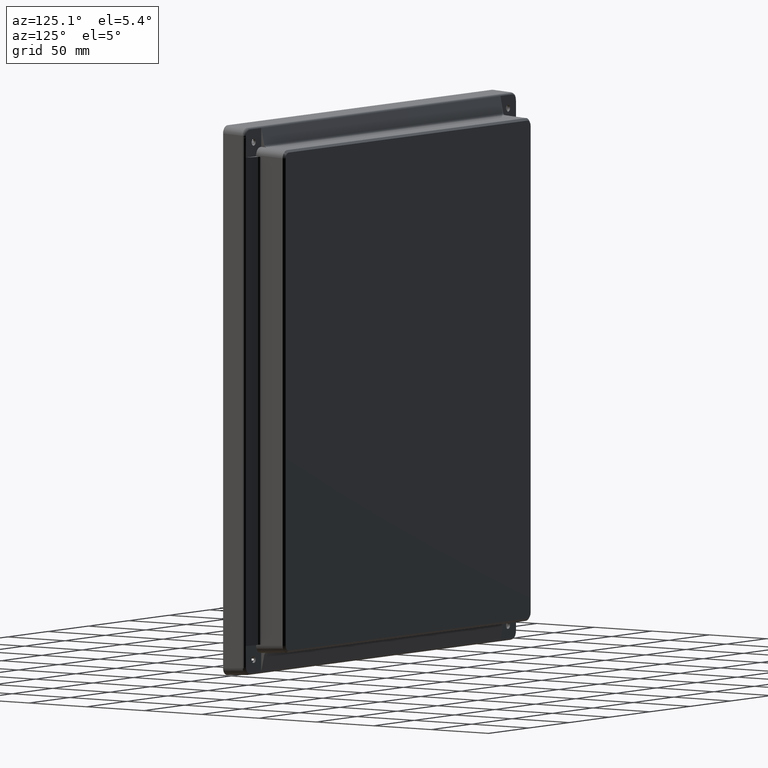
[diagram: clean part render]
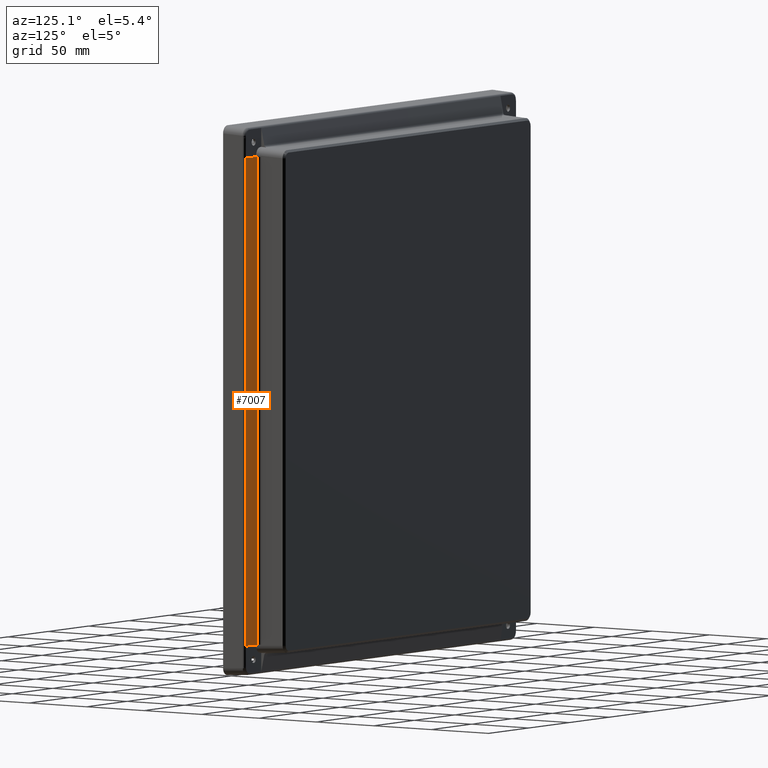
[diagram: same view with one face highlighted and labeled with its STEP entity id]
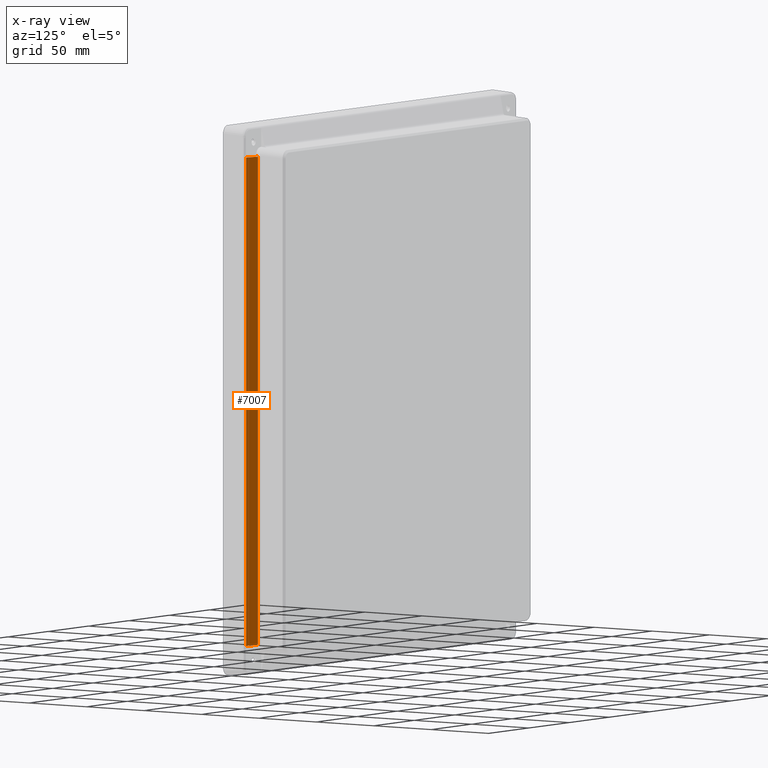
[diagram: x-ray of the same camera — body ghosted, the highlighted face saturated]
A machine part, auxiliary view. The second image highlights one B-rep face of the part: STEP entity #7007.
The next image is the same camera in x-ray: the body ghosted, the highlighted face saturated — about 0% of this face is hidden behind the body in this view.
In plain terms, the highlighted planar face has unit normal (0.2079, 0.9781, 0).
Its self-contained STEP definition (entity closure, byte-faithful):
#7007 = ADVANCED_FACE ( 'NONE', ( #9925 ), #9924, .T. ) ;
#7008 = EDGE_LOOP ( 'NONE', ( #7009, #7013, #7016, #7074 ) ) ;
#7009 = ORIENTED_EDGE ( 'NONE', *, *, #7010, .T. ) ;
#7010 = EDGE_CURVE ( 'NONE', #7011, #7012, #9922, .T. ) ;
#7011 = VERTEX_POINT ( 'NONE', #9915 ) ;
#7012 = VERTEX_POINT ( 'NONE', #9914 ) ;
#7013 = ORIENTED_EDGE ( 'NONE', *, *, #7014, .T. ) ;
#7014 = EDGE_CURVE ( 'NONE', #7012, #7015, #9913, .T. ) ;
#7015 = VERTEX_POINT ( 'NONE', #9973 ) ;
#7016 = ORIENTED_EDGE ( 'NONE', *, *, #7017, .T. ) ;
#7017 = EDGE_CURVE ( 'NONE', #7015, #7018, #9972, .T. ) ;
#7018 = VERTEX_POINT ( 'NONE', #9968 ) ;
#7074 = ORIENTED_EDGE ( 'NONE', *, *, #7075, .T. ) ;
#7075 = EDGE_CURVE ( 'NONE', #7018, #7011, #10111, .T. ) ;
#9913 = LINE ( 'NONE', #9976, #9975 ) ;
#9914 = CARTESIAN_POINT ( 'NONE',  ( 155.8193288229011600, 12.69024197221564000, -174.5575553951949000 ) ) ;
#9915 = CARTESIAN_POINT ( 'NONE',  ( 166.9748041026298900, 10.31907250296160300, -174.6818231213823100 ) ) ;
#9916 = DIRECTION ( 'NONE',  ( -0.9780895396599574900, 0.2078993495555324100, 0.01089554322459434700 ) ) ;
#9917 = VECTOR ( 'NONE', #9916, 1000.000000000000000 ) ;
#9918 = CARTESIAN_POINT ( 'NONE',  ( 164.5283765008035700, 10.83907674238043700, -174.6545708539765700 ) ) ;
#9919 = DIRECTION ( 'NONE',  ( -0.9781476007338061300, 0.2079116908177565700, 0.0000000000000000000 ) ) ;
#9920 = DIRECTION ( 'NONE',  ( 0.2079116908177565900, 0.9781476007338062400, 5.896723940079224200E-017 ) ) ;
#9921 = AXIS2_PLACEMENT_3D ( 'NONE', #9923, #9920, #9919 ) ;
#9922 = LINE ( 'NONE', #9918, #9917 ) ;
#9923 = CARTESIAN_POINT ( 'NONE',  ( 168.4759222071696200, 9.999999999999998200, 195.7259222071696200 ) ) ;
#9924 = PLANE ( 'NONE',  #9921 ) ;
#9925 = FACE_OUTER_BOUND ( 'NONE', #7008, .T. ) ;
#9968 = CARTESIAN_POINT ( 'NONE',  ( 166.9748041026297800, 10.31907250296160300, 174.6818231213824500 ) ) ;
#9969 = DIRECTION ( 'NONE',  ( 0.9780895396599574900, -0.2078993495555324100, 0.01089554322459431900 ) ) ;
#9970 = VECTOR ( 'NONE', #9969, 1000.000000000000100 ) ;
#9971 = CARTESIAN_POINT ( 'NONE',  ( 168.7000071150184200, 9.952369282465509700, 174.7010412228245900 ) ) ;
#9972 = LINE ( 'NONE', #9971, #9970 ) ;
#9973 = CARTESIAN_POINT ( 'NONE',  ( 155.8193288229012100, 12.69024197221560300, 174.5575553951951000 ) ) ;
#9974 = DIRECTION ( 'NONE',  ( 1.578409515821900400E-016, -9.383473256558876700E-017, 1.000000000000000000 ) ) ;
#9975 = VECTOR ( 'NONE', #9974, 1000.000000000000000 ) ;
#9976 = CARTESIAN_POINT ( 'NONE',  ( 155.8193288229012100, 12.69024197221560600, 174.5408335138846200 ) ) ;
#10108 = DIRECTION ( 'NONE',  ( 2.828508372835667400E-016, 1.628011680734772200E-019, -1.000000000000000000 ) ) ;
#10109 = VECTOR ( 'NONE', #10108, 1000.000000000000000 ) ;
#10110 = CARTESIAN_POINT ( 'NONE',  ( 166.9748041026298900, 10.31907250296160300, -190.2162624004989500 ) ) ;
#10111 = LINE ( 'NONE', #10110, #10109 ) ;